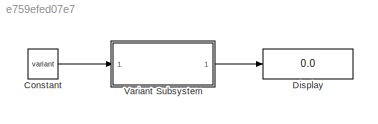
MODEL slx_e759efed07e7
KIND model
CONFIG AbsTol = auto
CONFIG FixedStep = auto
CONFIG MaxStep = auto
CONFIG MinStep = auto
CONFIG RelTol = 1e-3
CONFIG SampleTimeConstraint = Unconstrained
CONFIG Solver = VariableStepAuto
CONFIG SolverMode = Auto
CONFIG SolverName = VariableStepAuto
CONFIG StartTime = 0.0
CONFIG StopTime = 10.0
BLOCK [Constant] Constant
  Value = variant
BLOCK [Display] Display
  Decimation = 1
  Ports = [1]
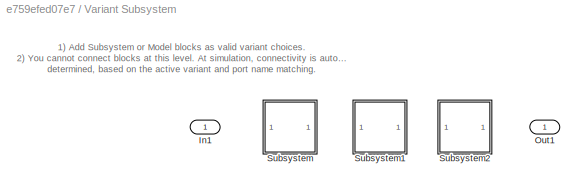
BLOCK [SubSystem] Variant Subsystem
  Ports = [1, 1]
  RequestExecContextInheritance = off
  Variant = on
BLOCK [Inport] Variant Subsystem/In1
  IconDisplay = Port number
BLOCK [Outport] Variant Subsystem/Out1
  IconDisplay = Port number
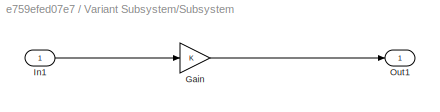
BLOCK [SubSystem] Variant Subsystem/Subsystem
  Ports = [1, 1]
  RequestExecContextInheritance = off
  Variant = off
  VariantControl = Variant1
BLOCK [Gain] Variant Subsystem/Subsystem/Gain
  OutDataTypeStr = Inherit: Inherit via internal rule
  ParamDataTypeStr = Inherit: Inherit via internal rule
  SaturateOnIntegerOverflow = off
BLOCK [Inport] Variant Subsystem/Subsystem/In1
  IconDisplay = Port number
BLOCK [Outport] Variant Subsystem/Subsystem/Out1
  IconDisplay = Port number
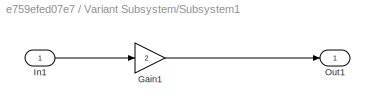
BLOCK [SubSystem] Variant Subsystem/Subsystem1
  Ports = [1, 1]
  RequestExecContextInheritance = off
  Variant = off
  VariantControl = Variant2
BLOCK [Gain] Variant Subsystem/Subsystem1/Gain1
  Gain = 2
  OutDataTypeStr = Inherit: Inherit via internal rule
  ParamDataTypeStr = Inherit: Inherit via internal rule
  SaturateOnIntegerOverflow = off
BLOCK [Inport] Variant Subsystem/Subsystem1/In1
  IconDisplay = Port number
BLOCK [Outport] Variant Subsystem/Subsystem1/Out1
  IconDisplay = Port number
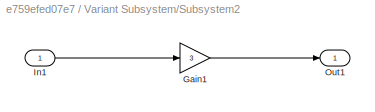
BLOCK [SubSystem] Variant Subsystem/Subsystem2
  Ports = [1, 1]
  RequestExecContextInheritance = off
  Variant = off
  VariantControl = Variant3
BLOCK [Gain] Variant Subsystem/Subsystem2/Gain1
  Gain = 3
  OutDataTypeStr = Inherit: Inherit via internal rule
  ParamDataTypeStr = Inherit: Inherit via internal rule
  SaturateOnIntegerOverflow = off
BLOCK [Inport] Variant Subsystem/Subsystem2/In1
  IconDisplay = Port number
BLOCK [Outport] Variant Subsystem/Subsystem2/Out1
  IconDisplay = Port number
ANNOTATION Variant Subsystem: 1) Add Subsystem or Model blocks as valid variant choices. 2) You cannot connect blocks at this level. At simulation, connectivity is automatically determined, based on the active variant and port name matching.
LINE Constant:1 -> Variant Subsystem:1
LINE Variant Subsystem/Subsystem/Gain:1 -> Variant Subsystem/Subsystem/Out1:1
LINE Variant Subsystem/Subsystem/In1:1 -> Variant Subsystem/Subsystem/Gain:1
LINE Variant Subsystem/Subsystem1/Gain1:1 -> Variant Subsystem/Subsystem1/Out1:1
LINE Variant Subsystem/Subsystem1/In1:1 -> Variant Subsystem/Subsystem1/Gain1:1
LINE Variant Subsystem/Subsystem2/Gain1:1 -> Variant Subsystem/Subsystem2/Out1:1
LINE Variant Subsystem/Subsystem2/In1:1 -> Variant Subsystem/Subsystem2/Gain1:1
LINE Variant Subsystem:1 -> Display:1
